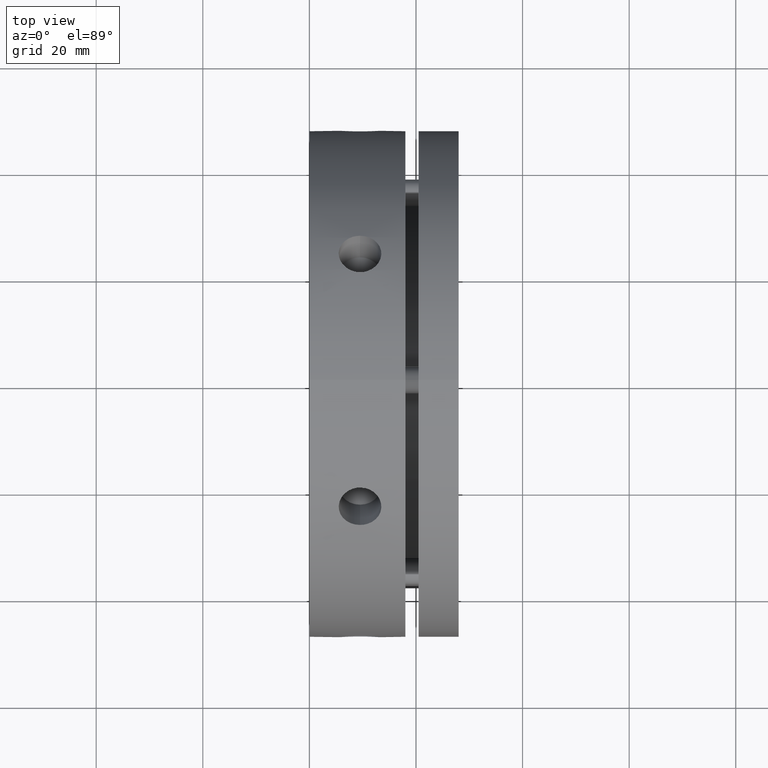
[diagram: clean part render]
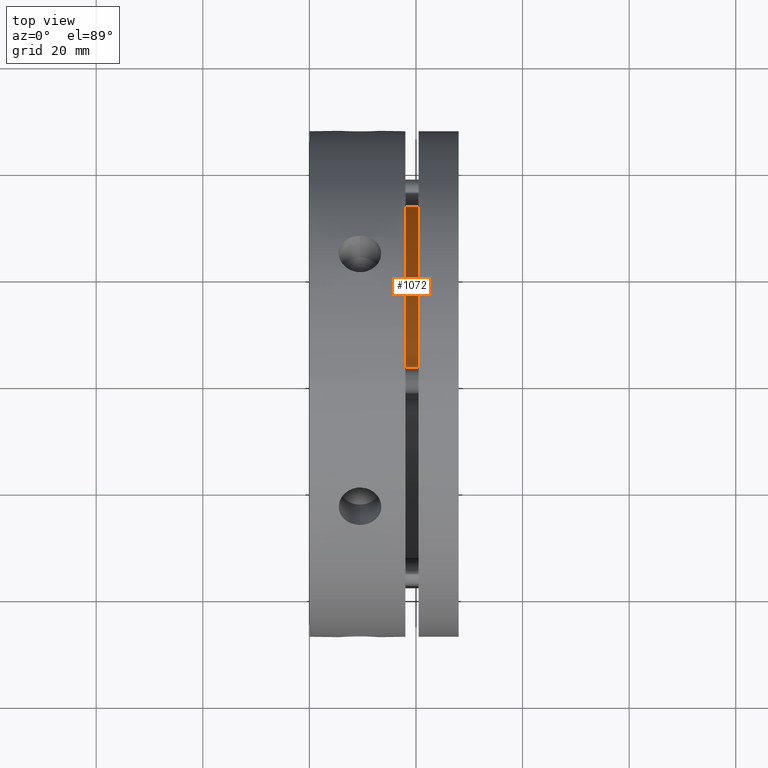
[diagram: same view with one face highlighted and labeled with its STEP entity id]
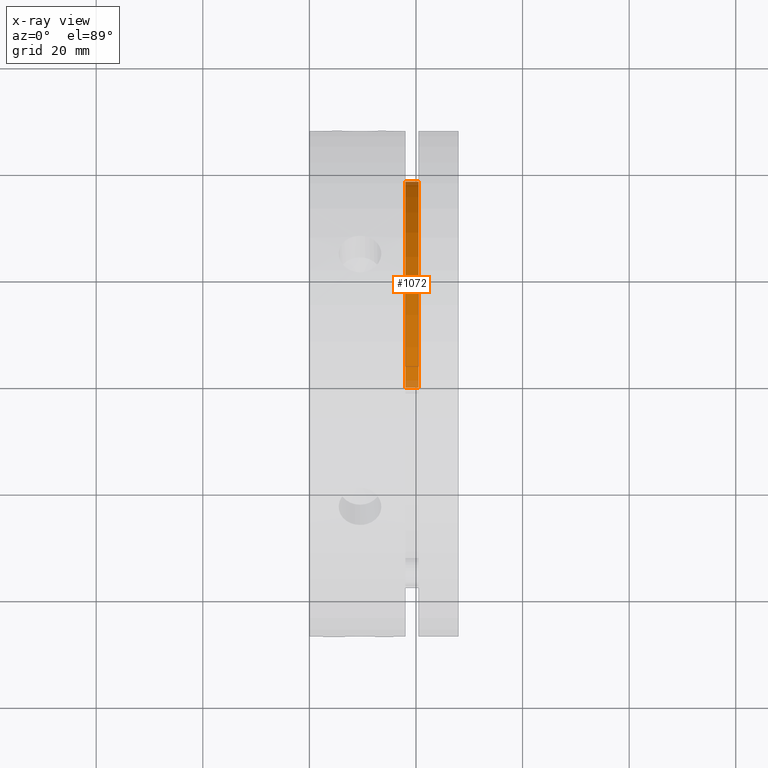
[diagram: x-ray of the same camera — body ghosted, the highlighted face saturated]
A machine part, top view. The second image highlights one B-rep face of the part: STEP entity #1072.
The next image is the same camera in x-ray: the body ghosted, the highlighted face saturated — about 5% of this face is hidden behind the body in this view.
In plain terms, the highlighted cylindrical surface (partial cylindrical patch) has radius 38 mm, axis along (-1, 0, 0).
Its self-contained STEP definition (entity closure, byte-faithful):
#24 = EDGE_LOOP ( 'NONE', ( #1351, #1350, #1349, #1348 ) ) ;
#162 = VERTEX_POINT ( 'NONE', #1472 ) ;
#219 = VERTEX_POINT ( 'NONE', #1527 ) ;
#253 = VERTEX_POINT ( 'NONE', #1550 ) ;
#262 = VERTEX_POINT ( 'NONE', #1566 ) ;
#496 = EDGE_CURVE ( 'NONE', #162, #219, #3456, .T. ) ;
#497 = EDGE_CURVE ( 'NONE', #219, #253, #3458, .T. ) ;
#498 = EDGE_CURVE ( 'NONE', #253, #262, #2944, .T. ) ;
#500 = EDGE_CURVE ( 'NONE', #162, #262, #2948, .T. ) ;
#826 = AXIS2_PLACEMENT_3D ( 'NONE', #2015, #2016, #2017 ) ;
#827 = AXIS2_PLACEMENT_3D ( 'NONE', #2011, #2012, #2013 ) ;
#936 = AXIS2_PLACEMENT_3D ( 'NONE', #2641, #2639, #2637 ) ;
#1072 = ADVANCED_FACE ( 'NONE', ( #1730 ), #1736, .T. ) ;
#1348 = ORIENTED_EDGE ( 'NONE', *, *, #500, .F. ) ;
#1349 = ORIENTED_EDGE ( 'NONE', *, *, #498, .T. ) ;
#1350 = ORIENTED_EDGE ( 'NONE', *, *, #497, .T. ) ;
#1351 = ORIENTED_EDGE ( 'NONE', *, *, #496, .T. ) ;
#1472 = CARTESIAN_POINT ( 'NONE',  ( 20.49999999999999300, 0.0000000000000000000, 38.00000000000000700 ) ) ;
#1527 = CARTESIAN_POINT ( 'NONE',  ( 20.49999999999999300, 4.653657836759942700E-015, -38.00000000000000700 ) ) ;
#1550 = CARTESIAN_POINT ( 'NONE',  ( 17.99999999999999300, 4.653657836759942700E-015, -38.00000000000000700 ) ) ;
#1566 = CARTESIAN_POINT ( 'NONE',  ( 17.99999999999999300, 0.0000000000000000000, 38.00000000000000700 ) ) ;
#1730 = FACE_OUTER_BOUND ( 'NONE', #24, .T. ) ;
#1736 = CYLINDRICAL_SURFACE ( 'NONE', #936, 38.00000000000000700 ) ;
#2007 = DIRECTION ( 'NONE',  ( -1.000000000000000000, 0.0000000000000000000, 0.0000000000000000000 ) ) ;
#2010 = CARTESIAN_POINT ( 'NONE',  ( 19.24999999999999300, 4.653657836759942700E-015, -38.00000000000000700 ) ) ;
#2011 = CARTESIAN_POINT ( 'NONE',  ( 20.49999999999999300, 0.0000000000000000000, 0.0000000000000000000 ) ) ;
#2012 = DIRECTION ( 'NONE',  ( -1.000000000000000000, 0.0000000000000000000, 0.0000000000000000000 ) ) ;
#2013 = DIRECTION ( 'NONE',  ( 0.0000000000000000000, 0.0000000000000000000, 1.000000000000000000 ) ) ;
#2014 = CARTESIAN_POINT ( 'NONE',  ( 19.24999999999999300, 0.0000000000000000000, 38.00000000000000700 ) ) ;
#2015 = CARTESIAN_POINT ( 'NONE',  ( 17.99999999999999300, 0.0000000000000000000, 0.0000000000000000000 ) ) ;
#2016 = DIRECTION ( 'NONE',  ( 1.000000000000000000, -0.0000000000000000000, -0.0000000000000000000 ) ) ;
#2017 = DIRECTION ( 'NONE',  ( 0.0000000000000000000, 0.0000000000000000000, 1.000000000000000000 ) ) ;
#2018 = DIRECTION ( 'NONE',  ( -1.000000000000000000, 0.0000000000000000000, 0.0000000000000000000 ) ) ;
#2637 = DIRECTION ( 'NONE',  ( 0.0000000000000000000, 0.0000000000000000000, 1.000000000000000000 ) ) ;
#2639 = DIRECTION ( 'NONE',  ( -1.000000000000000000, 0.0000000000000000000, 0.0000000000000000000 ) ) ;
#2641 = CARTESIAN_POINT ( 'NONE',  ( 19.24999999999999300, 0.0000000000000000000, 0.0000000000000000000 ) ) ;
#2942 = VECTOR ( 'NONE', #2007, 1000.000000000000000 ) ;
#2944 = CIRCLE ( 'NONE', #826, 38.00000000000000700 ) ;
#2948 = LINE ( 'NONE', #2014, #2949 ) ;
#2949 = VECTOR ( 'NONE', #2018, 1000.000000000000000 ) ;
#3456 = CIRCLE ( 'NONE', #827, 38.00000000000000700 ) ;
#3458 = LINE ( 'NONE', #2010, #2942 ) ;